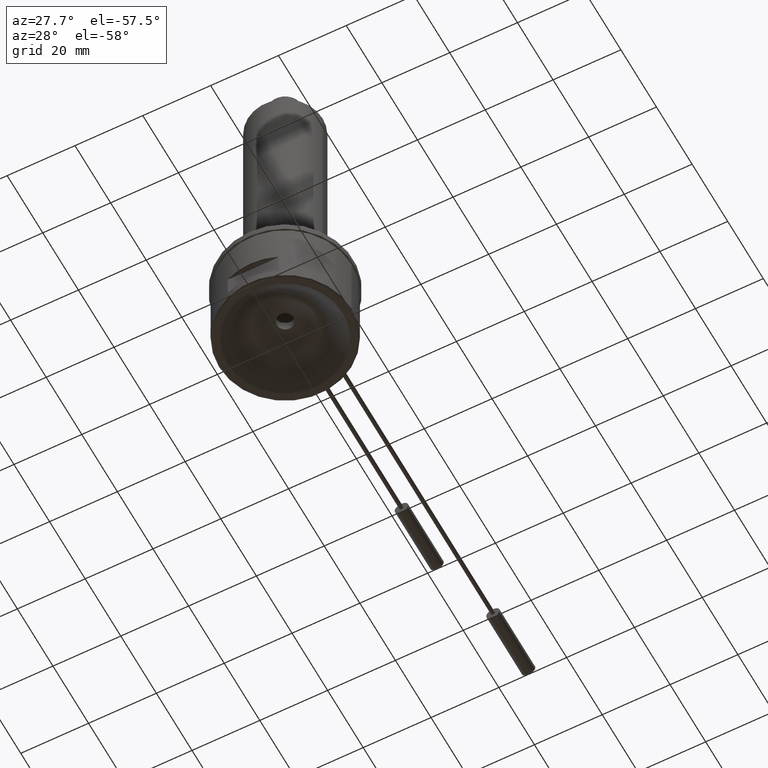
[diagram: clean part render]
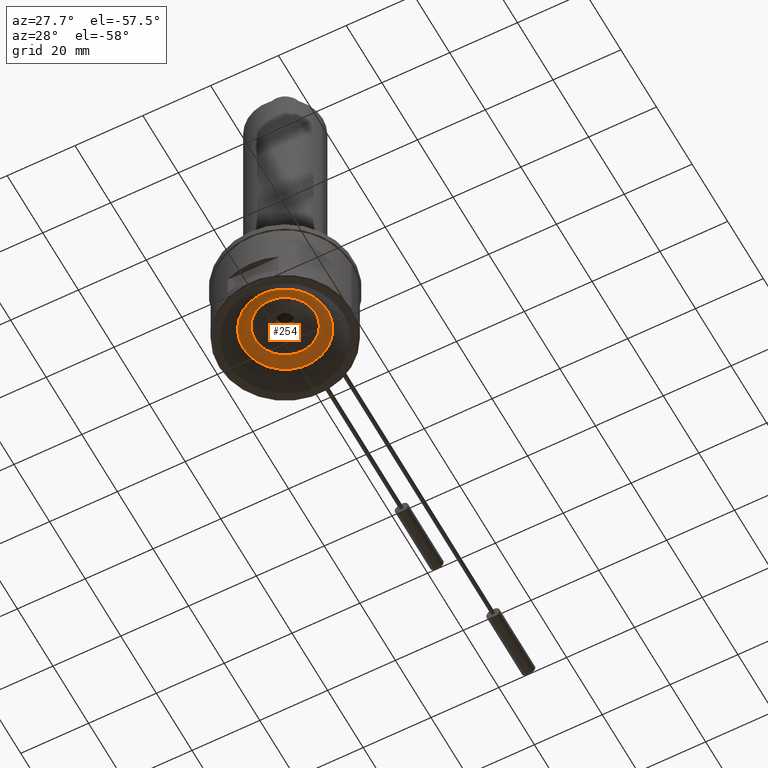
[diagram: same view with one face highlighted and labeled with its STEP entity id]
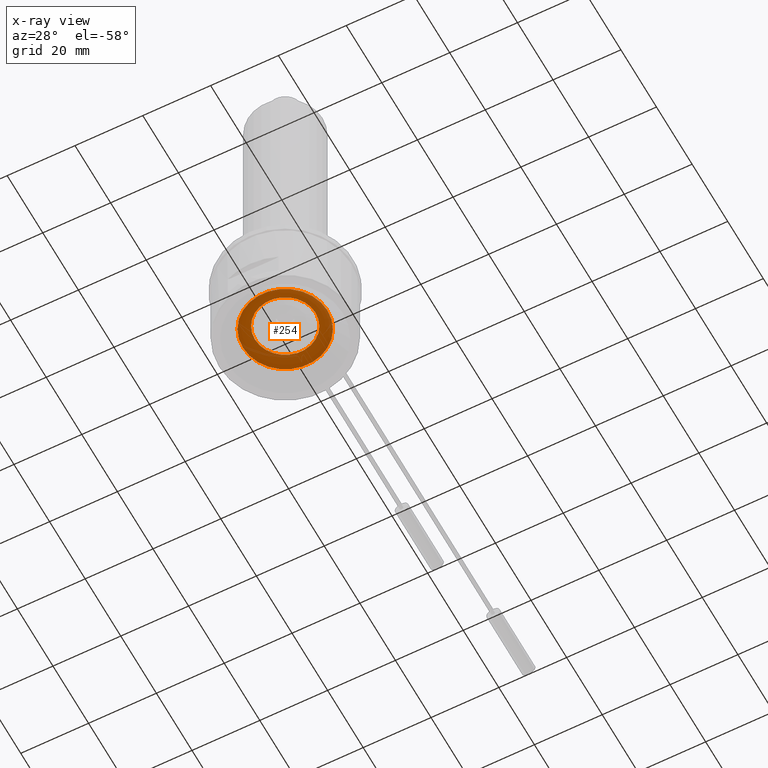
[diagram: x-ray of the same camera — body ghosted, the highlighted face saturated]
A machine part, auxiliary view. The second image highlights one B-rep face of the part: STEP entity #254.
The next image is the same camera in x-ray: the body ghosted, the highlighted face saturated — about 0% of this face is hidden behind the body in this view.
In plain terms, the highlighted toroidal blend (fillet) surface has major radius 8.9289 mm and minor (blend) radius 5 mm.
Its self-contained STEP definition (entity closure, byte-faithful):
#181=TOROIDAL_SURFACE('',#1184,8.92893218813457,5.);
#254=ADVANCED_FACE('',(#377,#378),#181,.F.);
#377=FACE_BOUND('',#457,.T.);
#378=FACE_BOUND('',#458,.T.);
#457=EDGE_LOOP('',(#634));
#458=EDGE_LOOP('',(#635));
#634=ORIENTED_EDGE('',*,*,#988,.F.);
#635=ORIENTED_EDGE('',*,*,#987,.F.);
#864=VERTEX_POINT('',#2074);
#865=VERTEX_POINT('',#2077);
#987=EDGE_CURVE('',#864,#864,#1086,.T.);
#988=EDGE_CURVE('',#865,#865,#1087,.T.);
#1086=CIRCLE('',#1181,8.92893218813457);
#1087=CIRCLE('',#1183,12.4644660940673);
#1181=AXIS2_PLACEMENT_3D('',#2073,#1417,#1418);
#1183=AXIS2_PLACEMENT_3D('',#2076,#1421,#1422);
#1184=AXIS2_PLACEMENT_3D('',#2078,#1423,#1424);
#1417=DIRECTION('',(0.,0.,-1.));
#1418=DIRECTION('',(1.,0.,0.));
#1421=DIRECTION('',(0.,0.,1.));
#1422=DIRECTION('',(-1.,0.,0.));
#1423=DIRECTION('',(0.,0.,1.));
#1424=DIRECTION('',(1.,0.,0.));
#2073=CARTESIAN_POINT('',(0.,0.,5.99999999999997));
#2074=CARTESIAN_POINT('',(8.92893218813457,0.,5.99999999999997));
#2076=CARTESIAN_POINT('',(0.,0.,4.5355339059327));
#2077=CARTESIAN_POINT('',(-12.4644660940673,0.,4.5355339059327));
#2078=CARTESIAN_POINT('',(0.,0.,0.999999999999974));